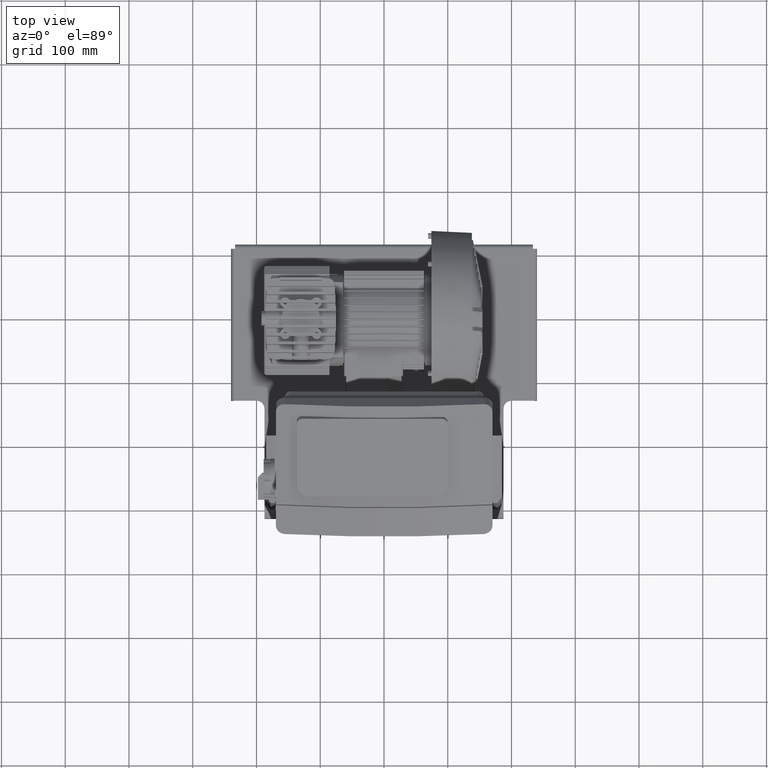
[diagram: clean part render]
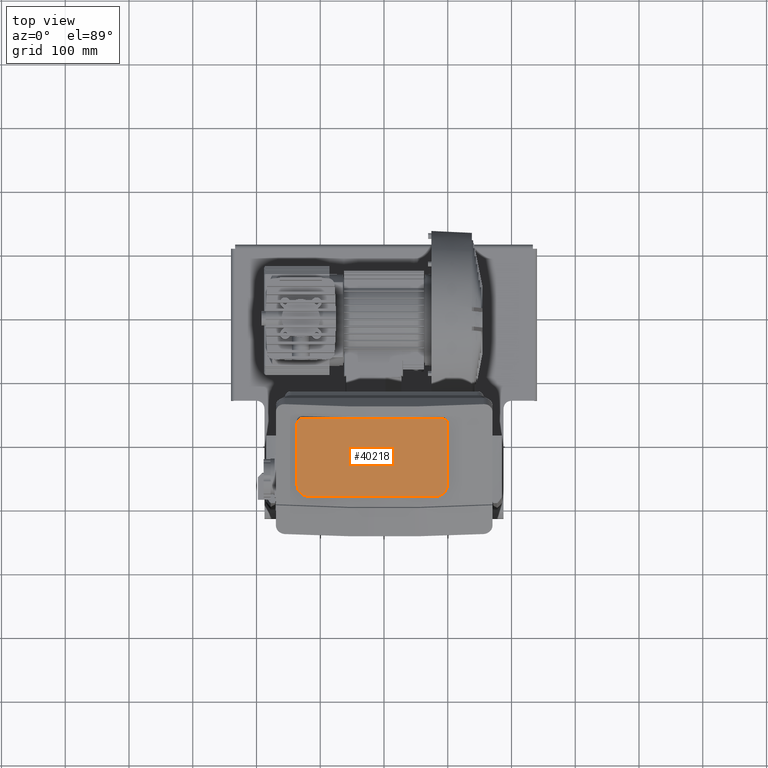
[diagram: same view with one face highlighted and labeled with its STEP entity id]
A machine part, top view. The second image highlights one B-rep face of the part: STEP entity #40218.
In plain terms, the highlighted face is a freeform B-spline surface patch.
Its self-contained STEP definition (entity closure, byte-faithful):
#40103=CARTESIAN_POINT('',(-115.03061832758334,7.349395009511682,817.28379546749682));
#40104=VERTEX_POINT('',#40103);
#40111=CARTESIAN_POINT('',(-136.5306183275834,25.968941190876876,828.03379546749738));
#40112=VERTEX_POINT('',#40111);
#40113=CARTESIAN_POINT('',(-115.0306183275834,25.968941190876876,828.03379546749716));
#40114=DIRECTION('',(-1.998401E-015,0.500000000000016,-0.866025403784429));
#40115=DIRECTION('',(-0.707106781186548,-0.612372435695788,-0.353553390593284));
#40116=AXIS2_PLACEMENT_3D('',#40113,#40114,#40115);
#40117=CIRCLE('',#40116,21.500000000000004);
#40118=EDGE_CURVE('',#40104,#40112,#40117,.T.);
#40135=CARTESIAN_POINT('',(-136.53061832758374,121.23173560716441,883.03379546749909));
#40136=VERTEX_POINT('',#40135);
#40137=CARTESIAN_POINT('',(-136.53061832758343,25.96894119087689,828.03379546749738));
#40138=DIRECTION('',(-3.100550E-015,0.86602540378443,0.500000000000015));
#40139=VECTOR('',#40138,110.00000000000021);
#40140=LINE('',#40137,#40139);
#40141=EDGE_CURVE('',#40112,#40136,#40140,.T.);
#40160=CARTESIAN_POINT('',(-136.53061832758394,7.349395009510701,817.28379546749647));
#40161=CARTESIAN_POINT('',(99.469381672416631,7.349395009511809,817.28379546749602));
#40162=CARTESIAN_POINT('',(-136.53061832758436,128.59295153933277,887.28379546749954));
#40163=CARTESIAN_POINT('',(99.469381672416205,128.59295153933385,887.2837954674992));
#40164=B_SPLINE_SURFACE_WITH_KNOTS('',1,1,((#40160,#40162),(#40161,#40163)),.UNSPECIFIED.,.F.,.F.,.U.,(2,2),(2,2),(0.0,236.00000000000057),(0.0,140.0000000000021),.UNSPECIFIED.);
#40165=ORIENTED_EDGE('',*,*,#40118,.F.);
#40166=CARTESIAN_POINT('',(77.969381672416148,7.349395009512591,817.2837954674967));
#40167=VERTEX_POINT('',#40166);
#40168=CARTESIAN_POINT('',(77.969381672416148,7.349395009512646,817.28379546749636));
#40169=DIRECTION('',(-1.0,0.0,0.0));
#40170=VECTOR('',#40169,192.99999999999949);
#40171=LINE('',#40168,#40170);
#40172=EDGE_CURVE('',#40167,#40104,#40171,.T.);
#40173=ORIENTED_EDGE('',*,*,#40172,.F.);
#40174=CARTESIAN_POINT('',(99.469381672416034,25.968941190877786,828.0337954674967));
#40175=VERTEX_POINT('',#40174);
#40176=CARTESIAN_POINT('',(77.969381672416034,25.968941190877786,828.0337954674967));
#40177=DIRECTION('',(-2.692291E-015,0.500000000000013,-0.866025403784431));
#40178=DIRECTION('',(0.707106781186549,-0.612372435695787,-0.353553390593284));
#40179=AXIS2_PLACEMENT_3D('',#40176,#40177,#40178);
#40180=CIRCLE('',#40179,21.500000000000004);
#40181=EDGE_CURVE('',#40175,#40167,#40180,.T.);
#40182=ORIENTED_EDGE('',*,*,#40181,.F.);
#40183=CARTESIAN_POINT('',(99.469381672415693,121.23173560716504,883.03379546749852));
#40184=VERTEX_POINT('',#40183);
#40185=CARTESIAN_POINT('',(99.469381672415736,121.23173560716512,883.03379546749841));
#40186=DIRECTION('',(2.971361E-015,-0.86602540378443,-0.500000000000014));
#40187=VECTOR('',#40186,110.00000000000003);
#40188=LINE('',#40185,#40187);
#40189=EDGE_CURVE('',#40184,#40175,#40188,.T.);
#40190=ORIENTED_EDGE('',*,*,#40189,.F.);
#40191=CARTESIAN_POINT('',(90.969381672415693,128.59295153933311,887.28379546749852));
#40192=VERTEX_POINT('',#40191);
#40193=CARTESIAN_POINT('',(90.969381672415693,121.23173560716526,883.03379546749841));
#40194=DIRECTION('',(-5.412337E-015,0.500000000000013,-0.866025403784431));
#40195=DIRECTION('',(0.707106781186543,0.612372435695795,0.353553390593282));
#40196=AXIS2_PLACEMENT_3D('',#40193,#40194,#40195);
#40197=CIRCLE('',#40196,8.500000000000002);
#40198=EDGE_CURVE('',#40192,#40184,#40197,.T.);
#40199=ORIENTED_EDGE('',*,*,#40198,.F.);
#40200=CARTESIAN_POINT('',(-128.0306183275838,128.59295153933198,887.28379546749909));
#40201=VERTEX_POINT('',#40200);
#40202=CARTESIAN_POINT('',(-128.0306183275838,128.59295153933192,887.28379546749909));
#40203=DIRECTION('',(1.0,0.0,0.0));
#40204=VECTOR('',#40203,218.99999999999949);
#40205=LINE('',#40202,#40204);
#40206=EDGE_CURVE('',#40201,#40192,#40205,.T.);
#40207=ORIENTED_EDGE('',*,*,#40206,.F.);
#40208=CARTESIAN_POINT('',(-128.03061832758374,121.23173560716413,883.03379546749875));
#40209=DIRECTION('',(-6.106227E-016,0.500000000000011,-0.866025403784432));
#40210=DIRECTION('',(-0.707106781186543,0.612372435695794,0.353553390593285));
#40211=AXIS2_PLACEMENT_3D('',#40208,#40209,#40210);
#40212=CIRCLE('',#40211,8.500000000000002);
#40213=EDGE_CURVE('',#40136,#40201,#40212,.T.);
#40214=ORIENTED_EDGE('',*,*,#40213,.F.);
#40215=ORIENTED_EDGE('',*,*,#40141,.F.);
#40216=EDGE_LOOP('',(#40165,#40173,#40182,#40190,#40199,#40207,#40214,#40215));
#40217=FACE_OUTER_BOUND('',#40216,.T.);
#40218=ADVANCED_FACE('',(#40217),#40164,.T.);